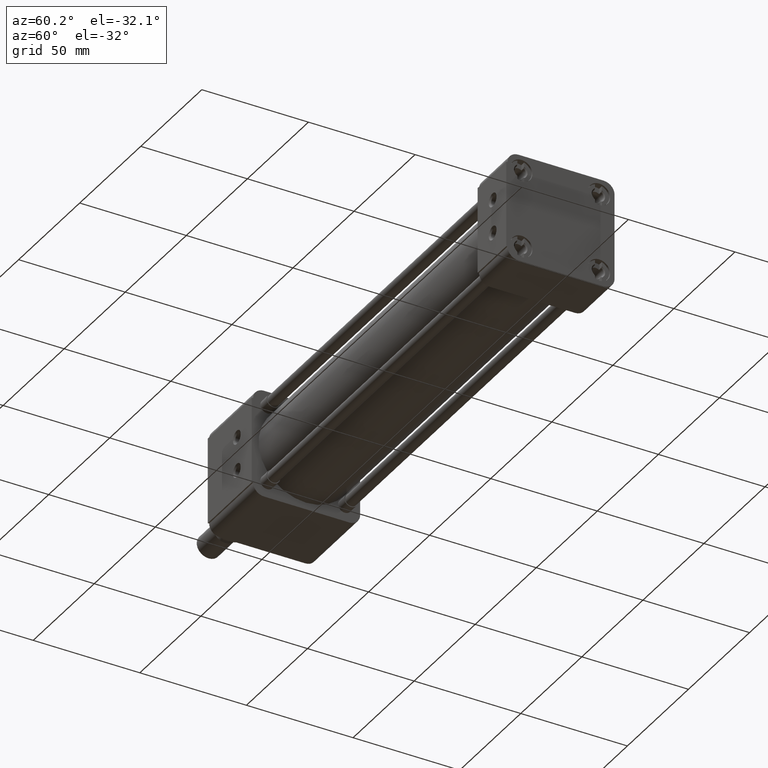
[diagram: clean part render]
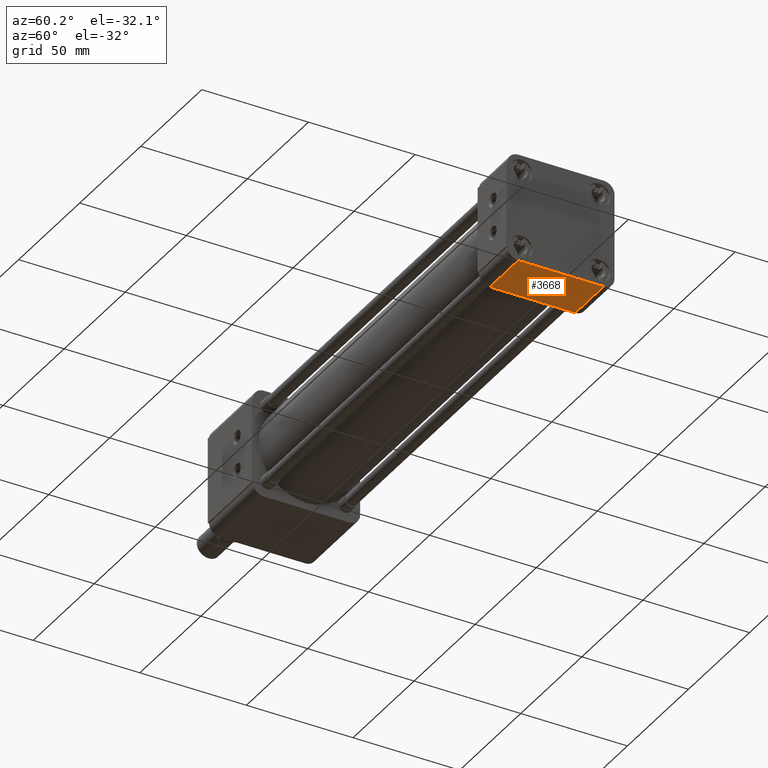
[diagram: same view with one face highlighted and labeled with its STEP entity id]
A machine part, auxiliary view. The second image highlights one B-rep face of the part: STEP entity #3668.
In plain terms, the highlighted planar face has unit normal (0, 0, 1).
Its self-contained STEP definition (entity closure, byte-faithful):
#204 = DIRECTION ( 'NONE',  ( 0.0000000000000000000, 0.0000000000000000000, 1.000000000000000000 ) ) ;
#1257 = VERTEX_POINT ( 'NONE', #7409 ) ;
#1320 = LINE ( 'NONE', #3929, #4355 ) ;
#2438 = DIRECTION ( 'NONE',  ( -1.000000000000000000, 0.0000000000000000000, 0.0000000000000000000 ) ) ;
#2721 = VECTOR ( 'NONE', #2438, 39.37007874015748100 ) ;
#3549 = EDGE_CURVE ( 'NONE', #9058, #1257, #11476, .T. ) ;
#3556 = DIRECTION ( 'NONE',  ( -0.0000000000000000000, -1.000000000000000000, -0.0000000000000000000 ) ) ;
#3668 = ADVANCED_FACE ( 'NONE', ( #3786 ), #9308, .F. ) ;
#3786 = FACE_OUTER_BOUND ( 'NONE', #11583, .T. ) ;
#3919 = ORIENTED_EDGE ( 'NONE', *, *, #5995, .F. ) ;
#3929 = CARTESIAN_POINT ( 'NONE',  ( 8.701000000000000500, -0.7749999999999999100, -1.000000000000000200 ) ) ;
#4355 = VECTOR ( 'NONE', #10778, 39.37007874015748100 ) ;
#4580 = DIRECTION ( 'NONE',  ( -0.0000000000000000000, -1.000000000000000000, -0.0000000000000000000 ) ) ;
#4927 = CARTESIAN_POINT ( 'NONE',  ( 9.621000000000000400, -0.7749999999999999100, -1.000000000000000000 ) ) ;
#5995 = EDGE_CURVE ( 'NONE', #1257, #9980, #7018, .T. ) ;
#6119 = EDGE_CURVE ( 'NONE', #9058, #8781, #7540, .T. ) ;
#7018 = LINE ( 'NONE', #10430, #12742 ) ;
#7074 = CARTESIAN_POINT ( 'NONE',  ( 8.701000000000000500, 0.8000000000000001600, -1.000000000000000000 ) ) ;
#7409 = CARTESIAN_POINT ( 'NONE',  ( 8.701000000000000500, 0.8000000000000001600, -1.000000000000000000 ) ) ;
#7540 = LINE ( 'NONE', #11419, #10221 ) ;
#7639 = ORIENTED_EDGE ( 'NONE', *, *, #6119, .T. ) ;
#7956 = CARTESIAN_POINT ( 'NONE',  ( 8.701000000000000500, -0.7749999999999999100, -1.000000000000000000 ) ) ;
#8139 = CARTESIAN_POINT ( 'NONE',  ( 8.701000000000000500, 0.8000000000000001600, -1.000000000000000200 ) ) ;
#8199 = DIRECTION ( 'NONE',  ( 1.000000000000000000, 0.0000000000000000000, 0.0000000000000000000 ) ) ;
#8781 = VERTEX_POINT ( 'NONE', #4927 ) ;
#9058 = VERTEX_POINT ( 'NONE', #9796 ) ;
#9308 = PLANE ( 'NONE',  #14209 ) ;
#9796 = CARTESIAN_POINT ( 'NONE',  ( 9.621000000000000400, 0.8000000000000001600, -1.000000000000000000 ) ) ;
#9980 = VERTEX_POINT ( 'NONE', #7956 ) ;
#10184 = EDGE_CURVE ( 'NONE', #9980, #8781, #1320, .T. ) ;
#10221 = VECTOR ( 'NONE', #4580, 39.37007874015748100 ) ;
#10430 = CARTESIAN_POINT ( 'NONE',  ( 8.701000000000000500, 0.8000000000000001600, -1.000000000000000000 ) ) ;
#10778 = DIRECTION ( 'NONE',  ( 1.000000000000000000, -0.0000000000000000000, -0.0000000000000000000 ) ) ;
#10969 = ORIENTED_EDGE ( 'NONE', *, *, #3549, .F. ) ;
#11419 = CARTESIAN_POINT ( 'NONE',  ( 9.621000000000000400, 0.8000000000000001600, -1.000000000000000000 ) ) ;
#11476 = LINE ( 'NONE', #8139, #2721 ) ;
#11583 = EDGE_LOOP ( 'NONE', ( #11830, #3919, #10969, #7639 ) ) ;
#11830 = ORIENTED_EDGE ( 'NONE', *, *, #10184, .F. ) ;
#12742 = VECTOR ( 'NONE', #3556, 39.37007874015748100 ) ;
#14209 = AXIS2_PLACEMENT_3D ( 'NONE', #7074, #204, #8199 ) ;